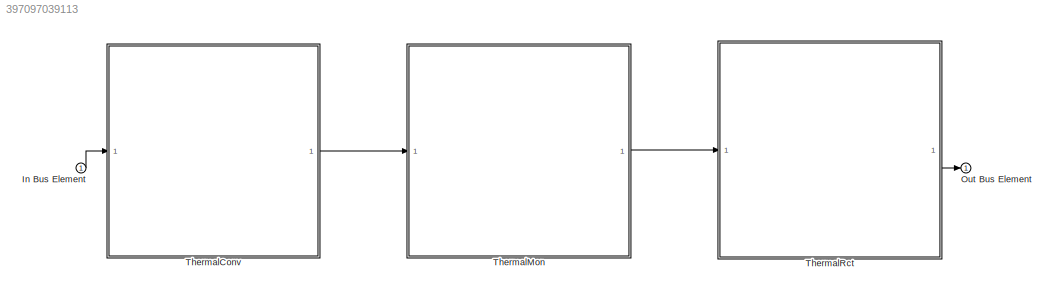
MODEL slx_397097039113
KIND model
CONFIG AbsTol = auto
CONFIG EnableMultiTasking = off
CONFIG FixedStep = auto
CONFIG MaxStep = auto
CONFIG MinStep = auto
CONFIG RelTol = 1e-3
CONFIG SampleTimeConstraint = Unconstrained
CONFIG SolverName = FixedStepAuto
CONFIG StartTime = 0.0
CONFIG StopTime = 10.0
BLOCK [Inport] In Bus Element
BLOCK [Outport] Out Bus Element
BLOCK [ModelReference] ThermalConv
  ModelNameDialog = ThermalConv.slx
  ModelReferenceVersion = 1.40
  PortSchema = {"entries":[{"content":{"headerSize":38,"margin":15,"minimumSpacing":25,"sides":[{"content":{"connectorIds":["In1"]},"type":"ConnectorPlacement.EquallySpacedRectSide","uuid":"a73a8560-612c-4519-a7cc-73bb3cd07d26"},{"content":{"connectorIds":["Out1"],"side":"RIGHT"},"type":"ConnectorPlacement.EquallySpacedRectSide","uuid":"e4cf386a-2153-4f43-8619-fdc8c6e0c160"},{"content":{"side":"TOP"},"type":"Con...<+270ch>
BLOCK [ModelReference] ThermalMon
  ModelNameDialog = ThermalMon.slx
  ModelReferenceVersion = 1.81
  PortSchema = {"entries":[{"content":{"headerSize":38,"margin":15,"minimumSpacing":25,"sides":[{"content":{"connectorIds":["In1"]},"type":"ConnectorPlacement.EquallySpacedRectSide","uuid":"27d55021-495f-43b3-9af8-86f1de2c2091"},{"content":{"connectorIds":["Out1"],"side":"RIGHT"},"type":"ConnectorPlacement.EquallySpacedRectSide","uuid":"bbc0f5a8-9053-4b1b-a447-49be09cb02d8"},{"content":{"side":"TOP"},"type":"Con...<+270ch>
BLOCK [ModelReference] ThermalRct
  ModelNameDialog = ThermalRct.slx
  ModelReferenceVersion = 1.78
  PortSchema = {"entries":[{"content":{"headerSize":38,"margin":15,"minimumSpacing":25,"sides":[{"content":{"connectorIds":["In1"]},"type":"ConnectorPlacement.EquallySpacedRectSide","uuid":"27d55021-495f-43b3-9af8-86f1de2c2091"},{"content":{"connectorIds":["Out1"],"side":"RIGHT"},"type":"ConnectorPlacement.EquallySpacedRectSide","uuid":"bbc0f5a8-9053-4b1b-a447-49be09cb02d8"},{"content":{"side":"TOP"},"type":"Con...<+270ch>
LINE In Bus Element:1 -> ThermalConv:1
LINE ThermalConv:1 -> ThermalMon:1
LINE ThermalMon:1 -> ThermalRct:1
LINE ThermalRct:1 -> Out Bus Element:1
